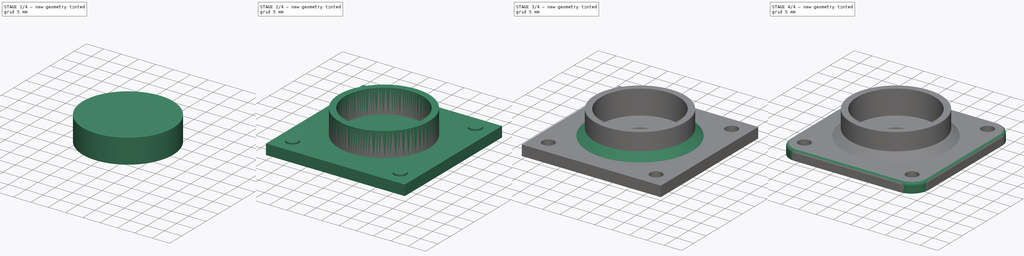
[diagram: build sequence overview — one tinted view per stage of 4, left to right]
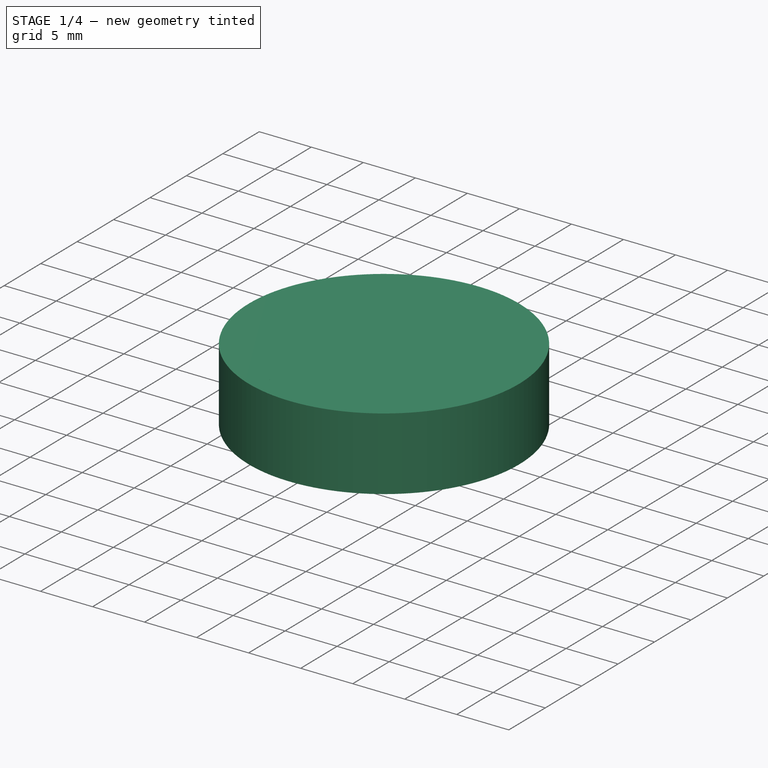
[diagram: stage 1 of 4 — iso view after this stage's code; geometry added in this stage tinted green]
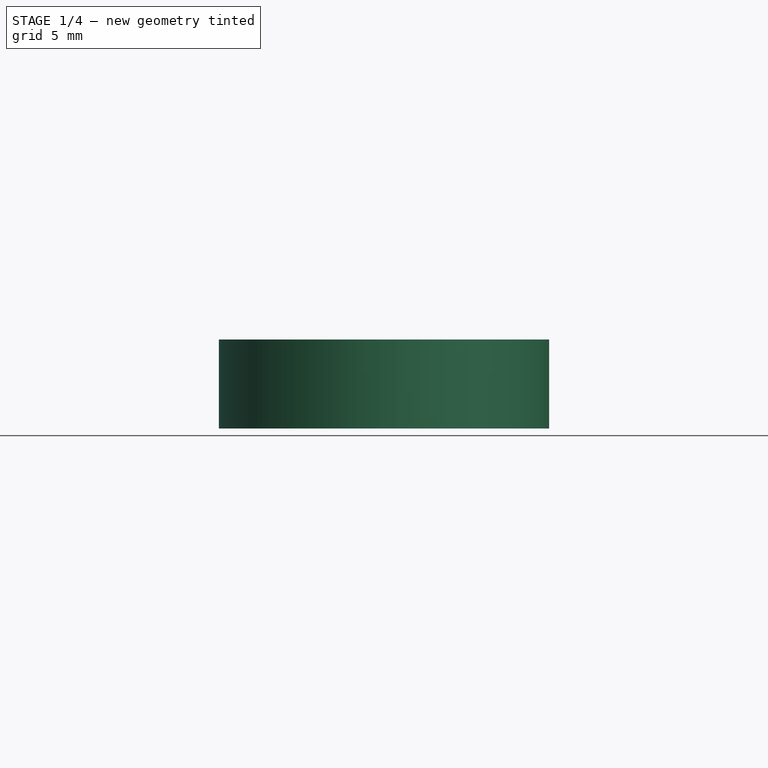
[diagram: stage 1 of 4 — front view after this stage's code; geometry added in this stage tinted green]
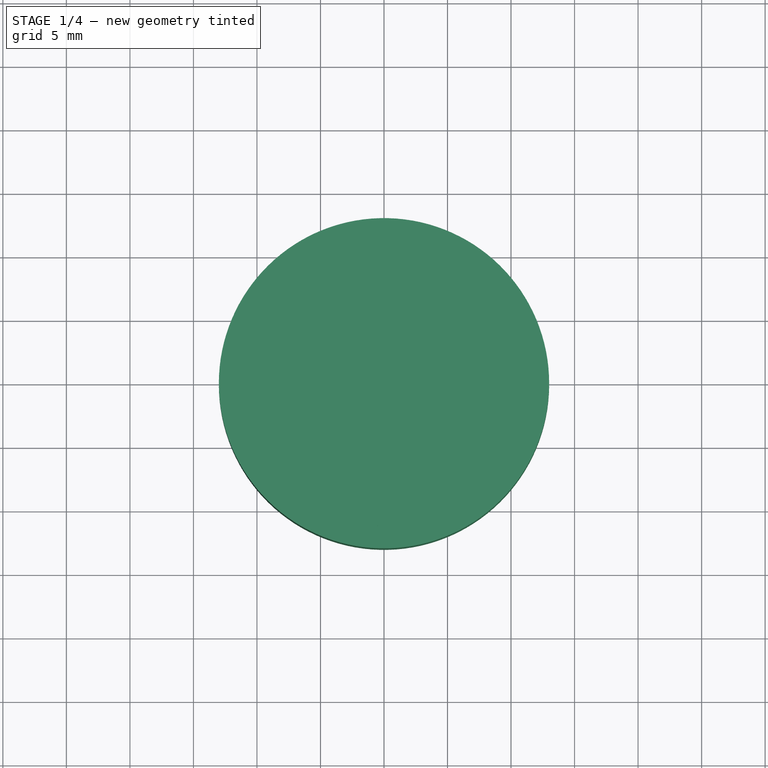
[diagram: stage 1 of 4 — top view after this stage's code; geometry added in this stage tinted green]
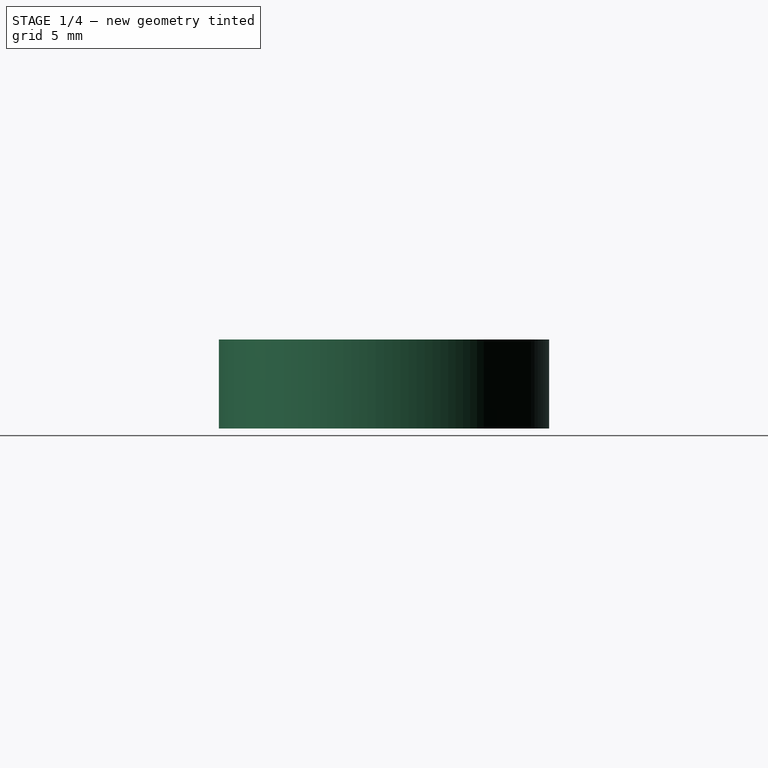
[diagram: stage 1 of 4 — right view after this stage's code; geometry added in this stage tinted green]
FCSTD DOCUMENT  (FreeCAD 0.15R4671 (Git))
Label: x-end-idler-CNC
License: All rights reserved
LicenseURL: http://en.wikipedia.org/wiki/All_rights_reserved
objects: Part::Cut×2, Part::Cylinder×2, Part::Fillet×2, Sketcher::SketchObject×1, Part::Box×1, PartDesign::Pad×1, Part::MultiFuse×1, Part::Chamfer×1
note: 12 computed .brp shape members not serialized (recipe doc carries the construction recipe); baked Part::Feature solids carry a one-line shape summary decoded from their .brp

FEATURE [Part::Cylinder] Cylinder  label="espai-608-ext"
  Angle = 360
  Height = 7
  Radius = 13
FEATURE [Part::Cylinder] Cylinder001  label="espai-608-int"
  Angle = 360
  Height = 7
  Radius = 11.25
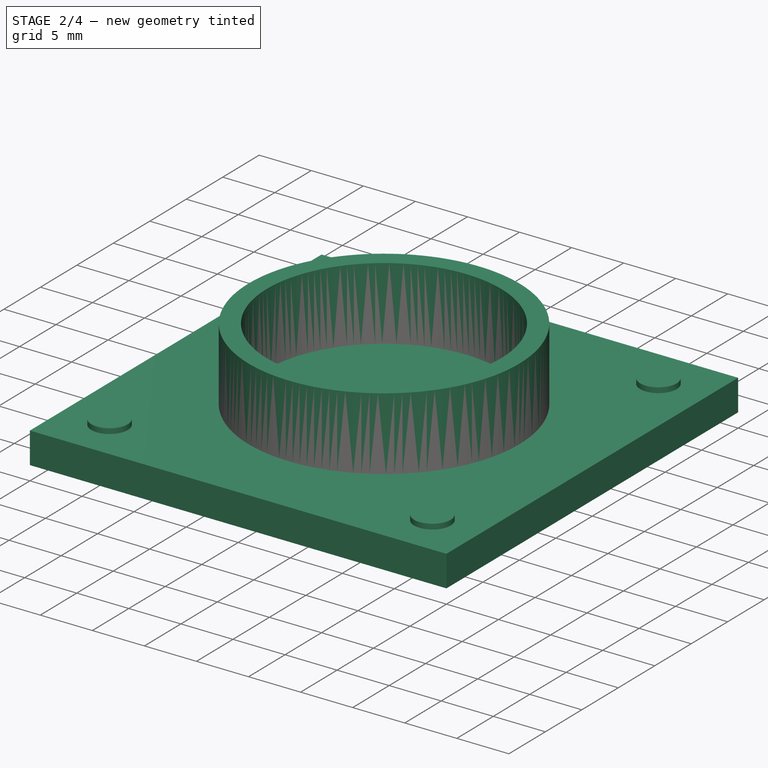
[diagram: stage 2 of 4 — iso view after this stage's code; geometry added in this stage tinted green]
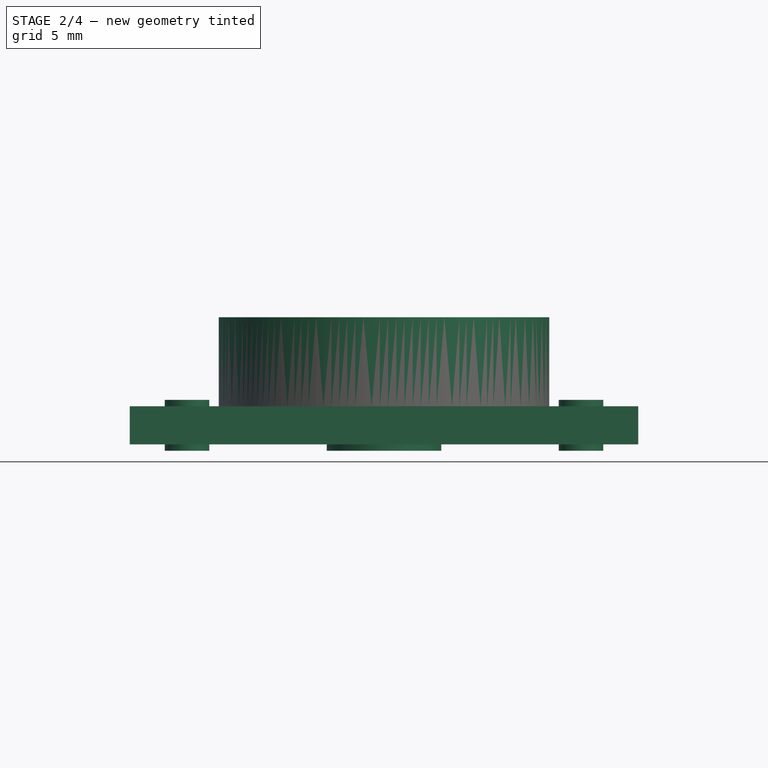
[diagram: stage 2 of 4 — front view after this stage's code; geometry added in this stage tinted green]
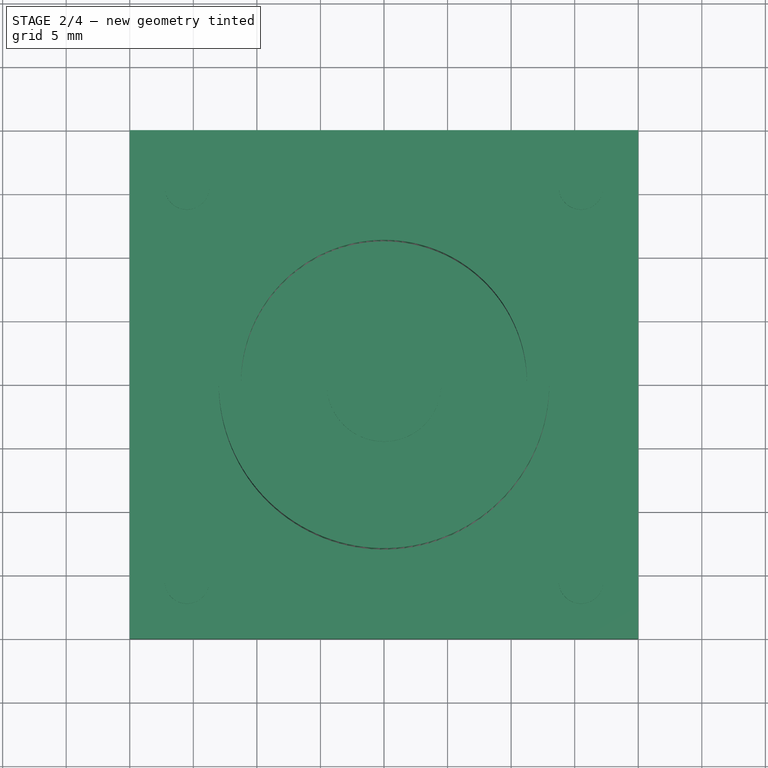
[diagram: stage 2 of 4 — top view after this stage's code; geometry added in this stage tinted green]
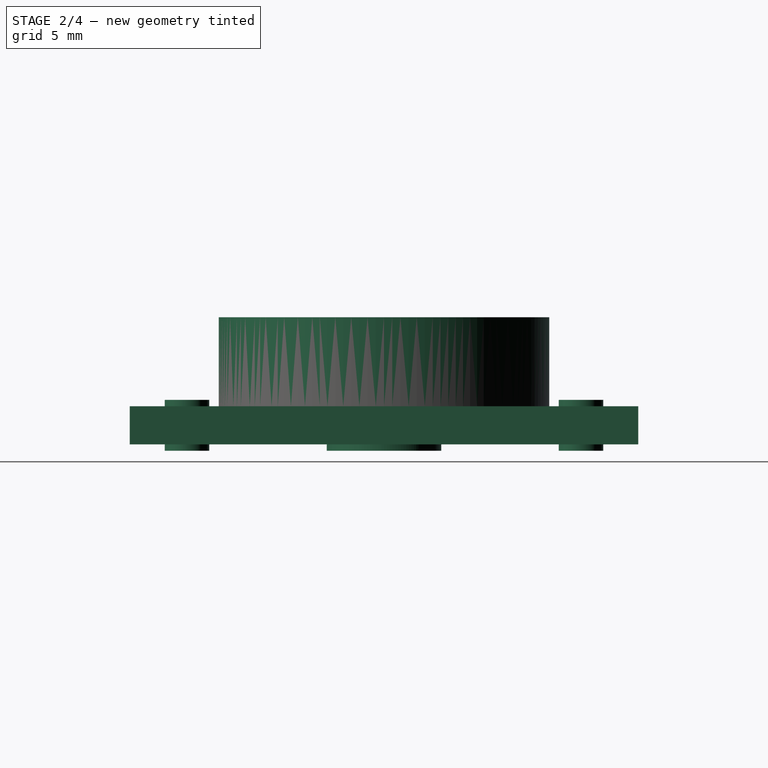
[diagram: stage 2 of 4 — right view after this stage's code; geometry added in this stage tinted green]
FEATURE [Sketcher::SketchObject] Sketch
  Placement = pos=(0,0,-0.5) rot=(0,0,1;0rad)
  sketch-geometry (5):
    g0: Circle CenterX=-15.5 CenterY=15.5 CenterZ=0 NormalX=0 NormalY=0 NormalZ=1 Radius=1.75
    g1: Circle CenterX=15.5 CenterY=15.5 CenterZ=0 NormalX=0 NormalY=0 NormalZ=1 Radius=1.75
    g2: Circle CenterX=-15.5 CenterY=-15.5 CenterZ=0 NormalX=0 NormalY=0 NormalZ=1 Radius=1.75
    g3: Circle CenterX=15.5 CenterY=-15.5 CenterZ=0 NormalX=0 NormalY=0 NormalZ=1 Radius=1.75
    g4: Circle CenterX=0 CenterY=0 CenterZ=0 NormalX=0 NormalY=0 NormalZ=1 Radius=4.5
  constraints (11):
    c: Radius(g0) = 1.75
    c: Equal(g0,g1)
    c: Equal(g0,g2)
    c: Equal(g0,g3)
    c: Radius(g4) = 4.5
    c: Coincident(g4,g-1)
    c: Symmetric(g0,g1,g-2)
    c: Symmetric(g0,g2,g-1)
    c: DistanceY(g0,g2) = -31
    c: DistanceX(g0,g1) = 31
    c: Symmetric(g3,g1,g-1)
FEATURE [Part::Box] Box  label="Cube"
  Height = 3
  Length = 40
  Placement = pos=(-20,-20,0) rot=(0,0,1;0rad)
  Width = 40
FEATURE [PartDesign::Pad] Pad
  Length = 4
  Length2 = 100
  Placement = pos=(0,0,-0.5) rot=(0,0,1;0rad)
  Sketch = -> Sketch
  Type = 0
FEATURE [Part::Cut] Cut001  label="espai-608"
  Base = -> Cylinder
  Placement = pos=(0,0,3) rot=(0,0,1;0rad)
  Tool = -> Cylinder001
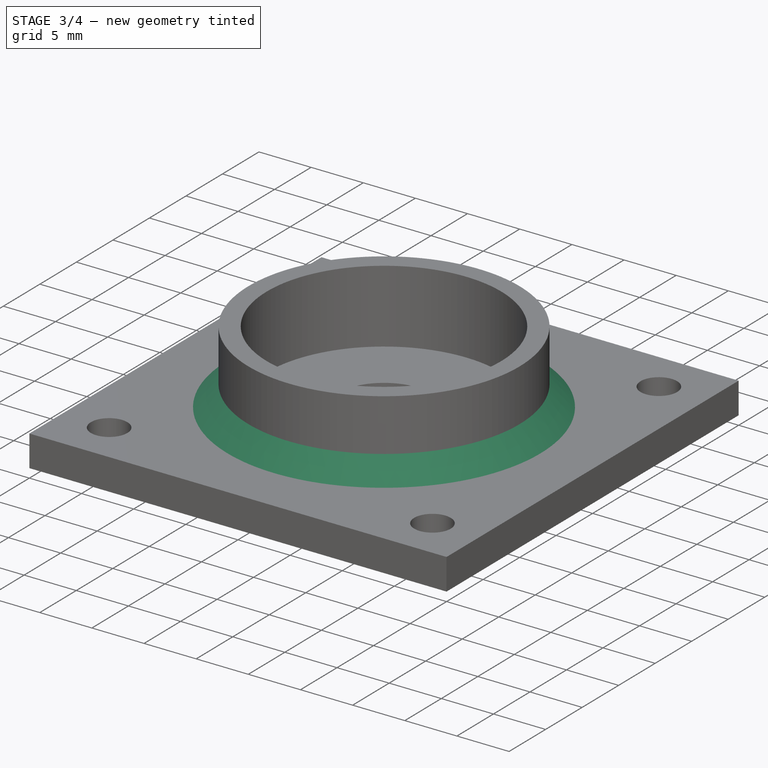
[diagram: stage 3 of 4 — iso view after this stage's code; geometry added in this stage tinted green]
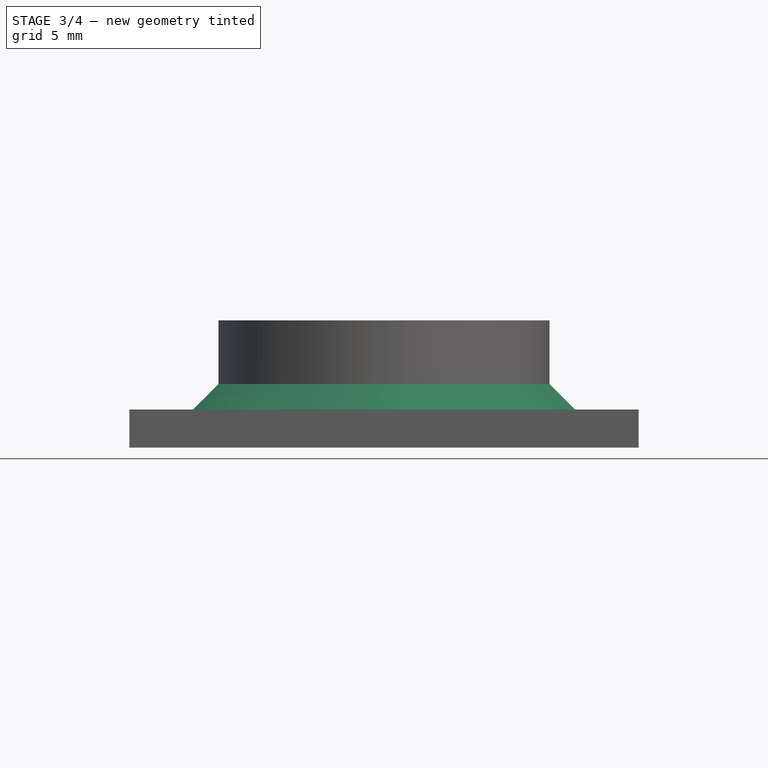
[diagram: stage 3 of 4 — front view after this stage's code; geometry added in this stage tinted green]
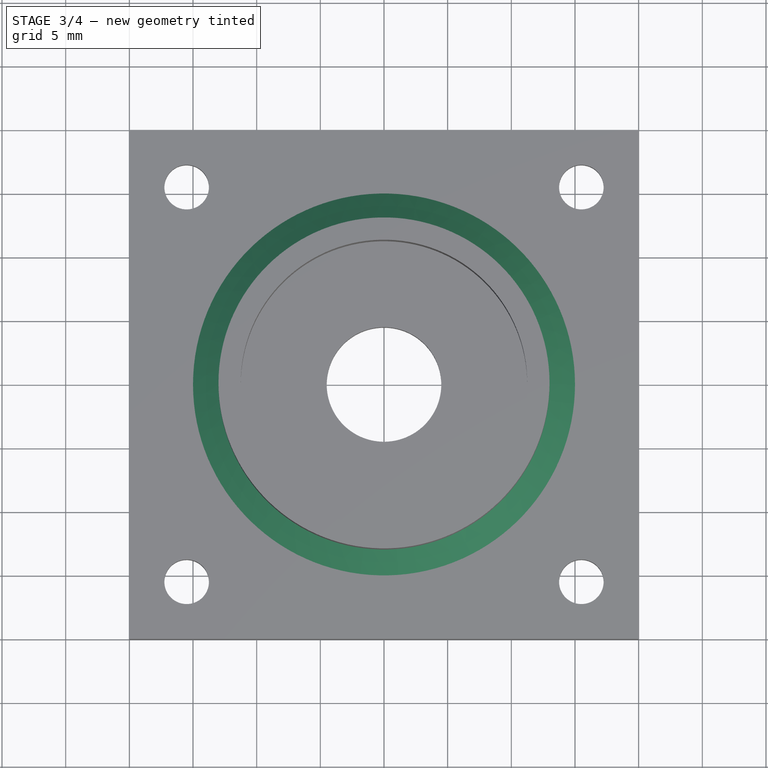
[diagram: stage 3 of 4 — top view after this stage's code; geometry added in this stage tinted green]
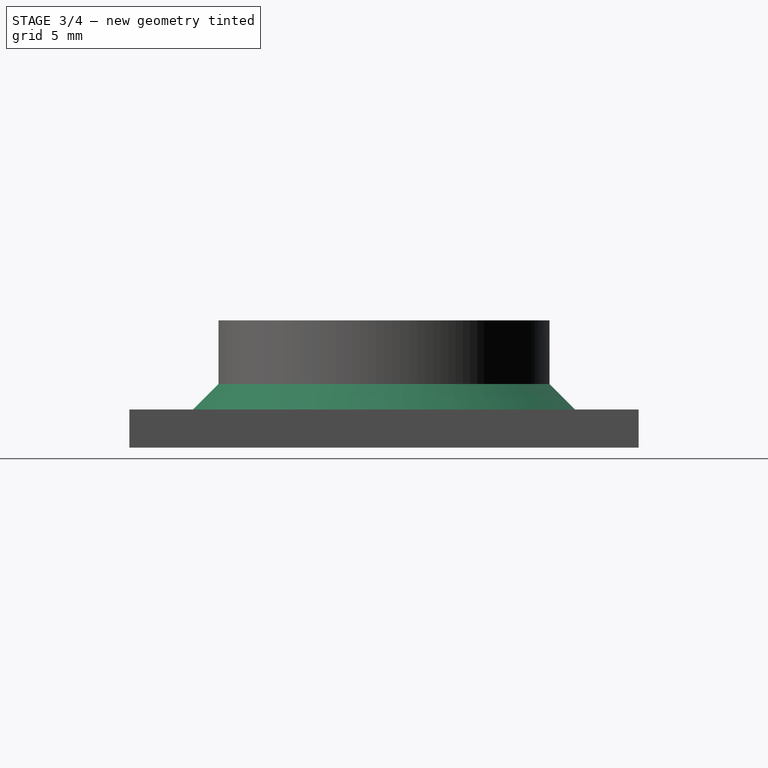
[diagram: stage 3 of 4 — right view after this stage's code; geometry added in this stage tinted green]
FEATURE [Part::Cut] Cut  label="quadrat-base-amb-forats"
  Base = -> Box
  Tool = -> Pad
FEATURE [Part::MultiFuse] Fusion  label="idler-no-arrod"
  Shapes = -> [Cut,Cut001]
FEATURE [Part::Chamfer] Chamfer
  Base = -> Fusion
  Edges = 1 edges r=2: [Edge13]
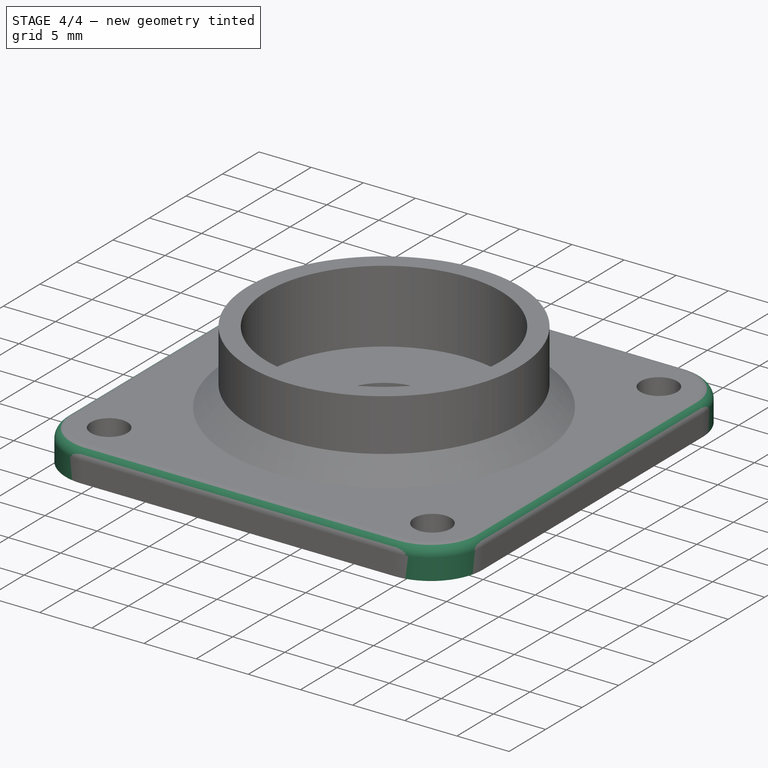
[diagram: stage 4 of 4 — iso view after this stage's code; geometry added in this stage tinted green]
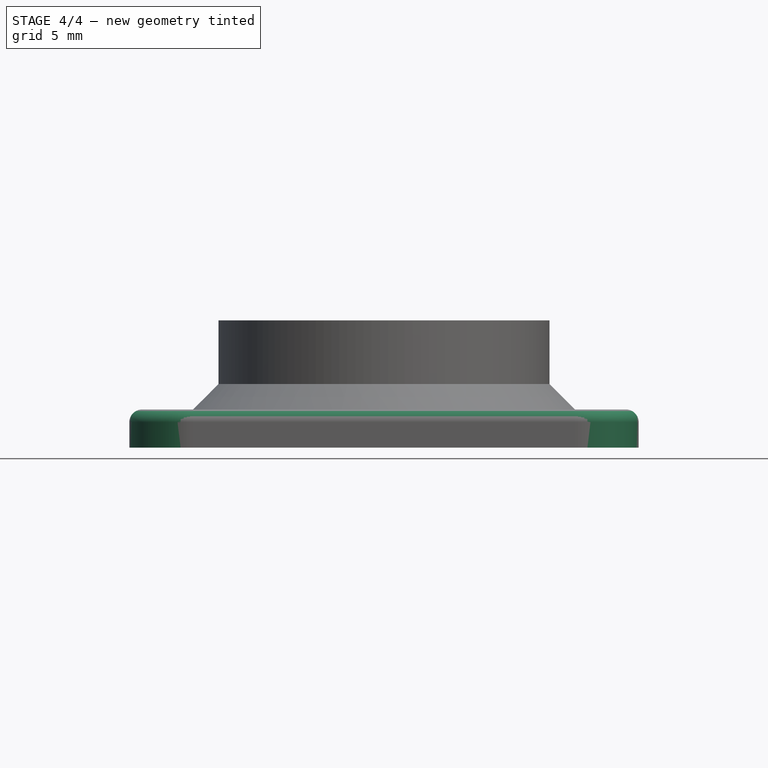
[diagram: stage 4 of 4 — front view after this stage's code; geometry added in this stage tinted green]
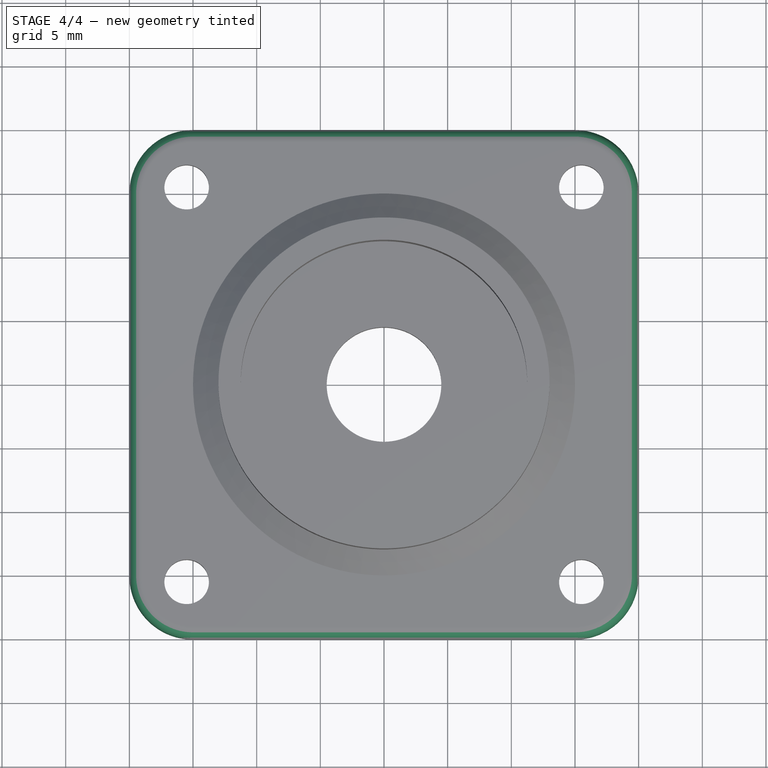
[diagram: stage 4 of 4 — top view after this stage's code; geometry added in this stage tinted green]
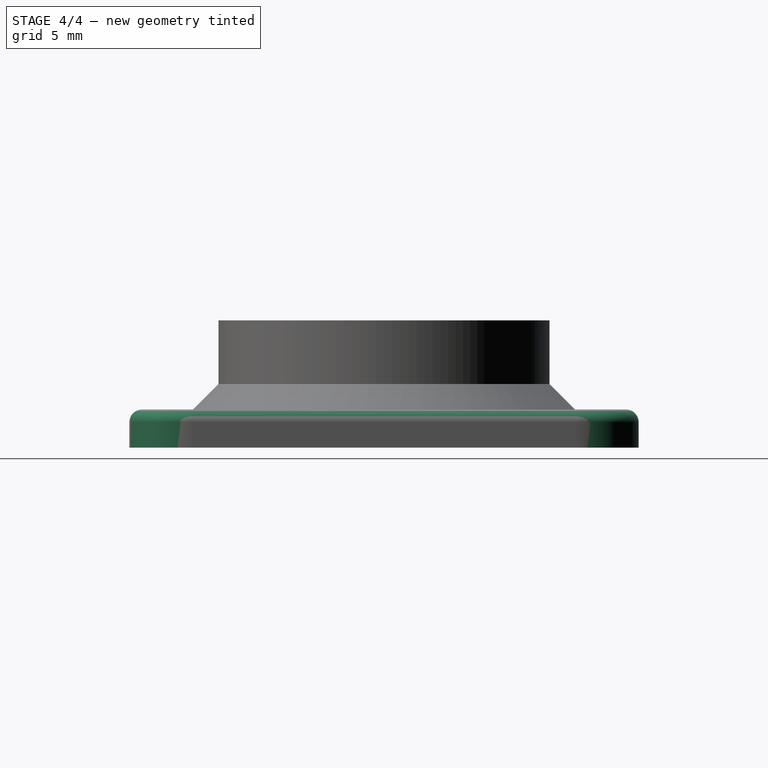
[diagram: stage 4 of 4 — right view after this stage's code; geometry added in this stage tinted green]
FEATURE [Part::Fillet] Fillet
  Base = -> Chamfer
  Edges = 4 edges r=5: [Edge12,Edge13,Edge16,Edge18]
FEATURE [Part::Fillet] Fillet001  label="x-end-idler-CNC"
  Base = -> Fillet
  Edges = 8 edges r=1: [Edge1,Edge2,Edge3,Edge4,Edge5,Edge6,Edge7,Edge8]
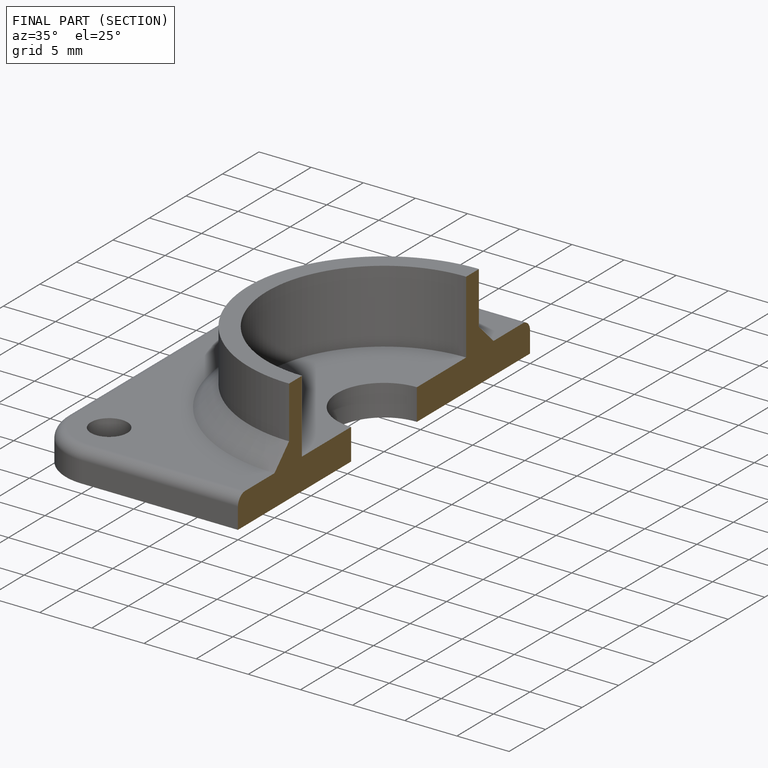
[diagram: finished part — half-section view (interior)]
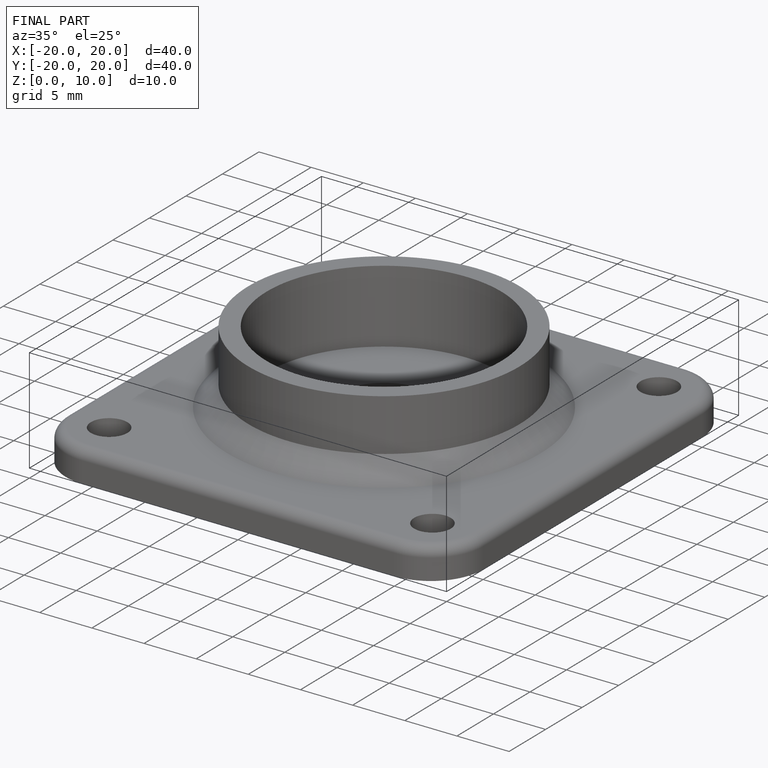
[diagram: finished part — iso view with bounding-box wireframe]
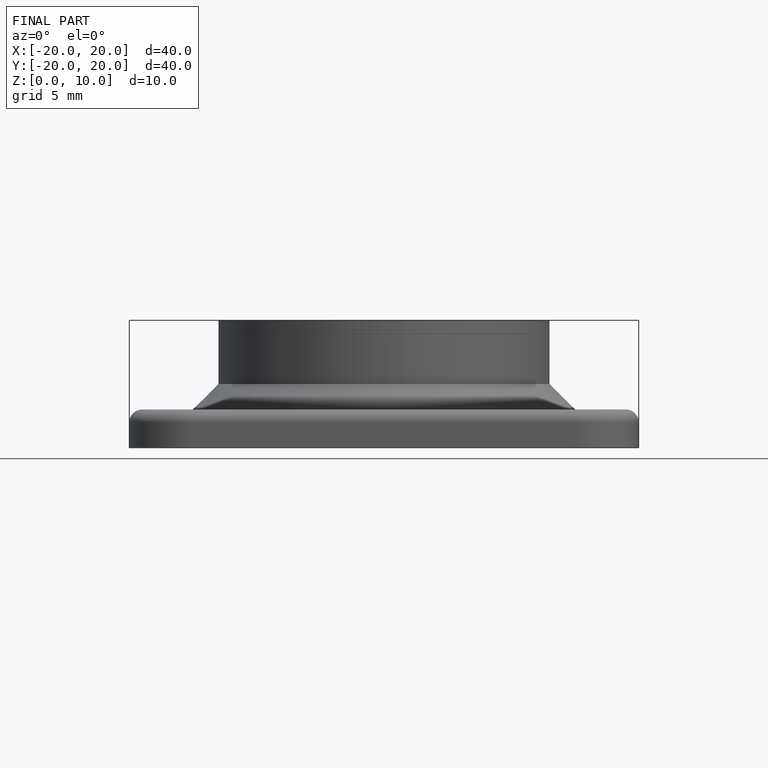
[diagram: finished part — front view with bounding-box wireframe]
